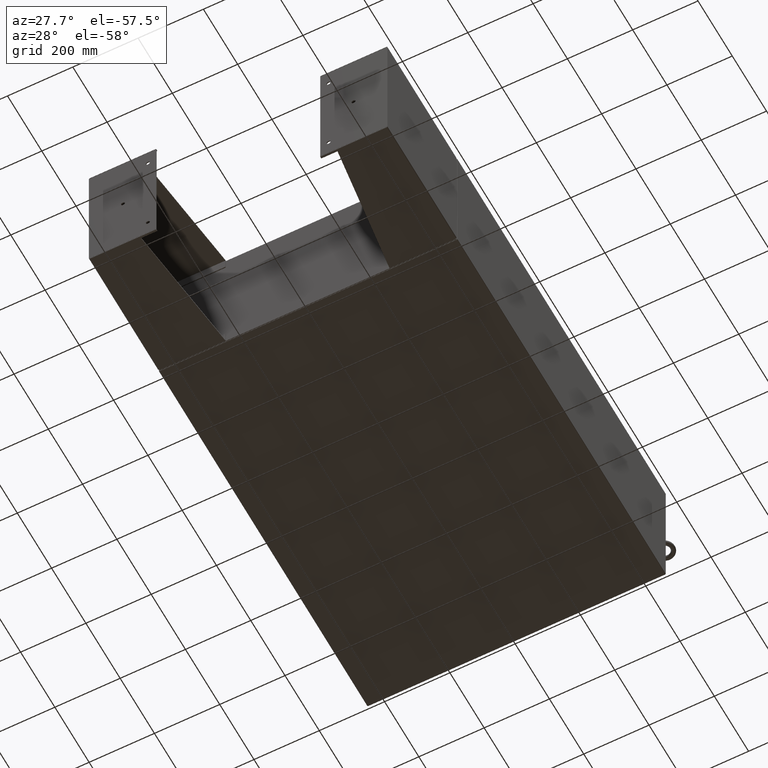
[diagram: clean part render]
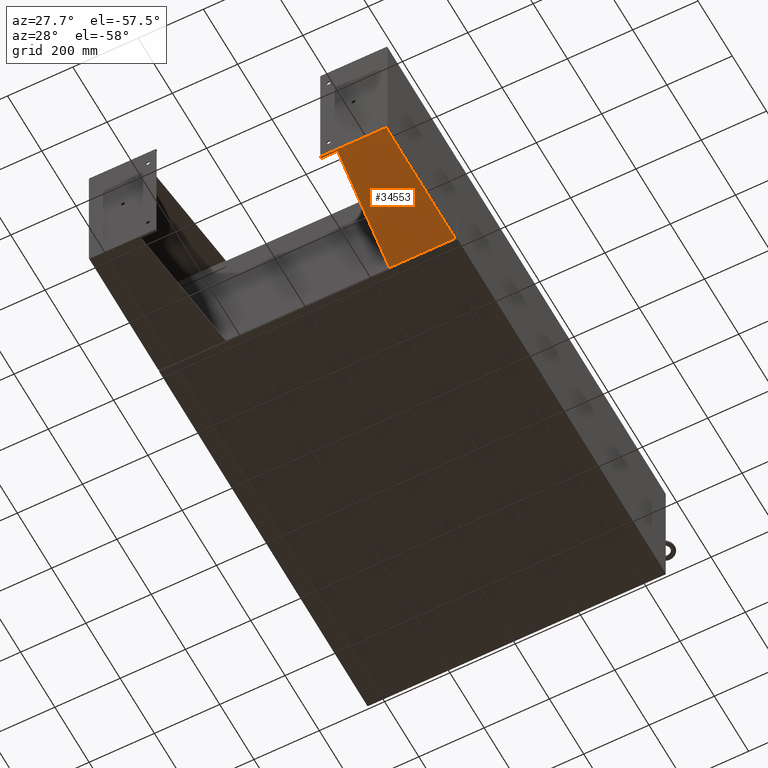
[diagram: same view with one face highlighted and labeled with its STEP entity id]
A machine part, auxiliary view. The second image highlights one B-rep face of the part: STEP entity #34553.
In plain terms, the highlighted planar face has unit normal (-0, 0, 1).
Its self-contained STEP definition (entity closure, byte-faithful):
#1995 = LINE ( 'NONE', #32430, #50338 ) ;
#2773 = VECTOR ( 'NONE', #52233, 39.37007874015748100 ) ;
#2926 = DIRECTION ( 'NONE',  ( 0.0000000000000000000, 0.0000000000000000000, -1.000000000000000000 ) ) ;
#4295 = VECTOR ( 'NONE', #4375, 39.37007874015748100 ) ;
#4375 = DIRECTION ( 'NONE',  ( -4.399772607369800400E-016, 0.9922942345449394800, 0.1239038017531047900 ) ) ;
#5338 = VERTEX_POINT ( 'NONE', #30991 ) ;
#5734 = CARTESIAN_POINT ( 'NONE',  ( -8.000000000000026600, 8.000000000000001800, 8.000999999999997700 ) ) ;
#5815 = EDGE_LOOP ( 'NONE', ( #18894, #35206, #10908, #16287, #25152, #47847 ) ) ;
#9837 = DIRECTION ( 'NONE',  ( 3.550958521948298200E-015, 0.0000000000000000000, -1.000000000000000000 ) ) ;
#10683 = VERTEX_POINT ( 'NONE', #13206 ) ;
#10908 = ORIENTED_EDGE ( 'NONE', *, *, #32558, .T. ) ;
#13166 = CARTESIAN_POINT ( 'NONE',  ( -8.000000000000019500, -7.749999999999999100, 6.052216497445926700 ) ) ;
#13206 = CARTESIAN_POINT ( 'NONE',  ( -8.000000000000019500, -7.750000000000000000, 6.052216497445926700 ) ) ;
#14947 = LINE ( 'NONE', #50383, #2773 ) ;
#15273 = VECTOR ( 'NONE', #36762, 39.37007874015748100 ) ;
#15725 = EDGE_CURVE ( 'NONE', #43756, #38823, #1995, .T. ) ;
#16287 = ORIENTED_EDGE ( 'NONE', *, *, #49145, .F. ) ;
#17274 = FACE_OUTER_BOUND ( 'NONE', #5815, .T. ) ;
#17494 = VERTEX_POINT ( 'NONE', #52718 ) ;
#17649 = DIRECTION ( 'NONE',  ( -3.550958521948298200E-015, 0.0000000000000000000, 1.000000000000000000 ) ) ;
#18894 = ORIENTED_EDGE ( 'NONE', *, *, #26671, .T. ) ;
#20696 = VECTOR ( 'NONE', #2926, 39.37007874015748100 ) ;
#22079 = PLANE ( 'NONE',  #26400 ) ;
#22983 = EDGE_CURVE ( 'NONE', #10683, #5338, #26165, .T. ) ;
#23143 = DIRECTION ( 'NONE',  ( 0.0000000000000000000, 1.000000000000000000, 0.0000000000000000000 ) ) ;
#24465 = LINE ( 'NONE', #38432, #42710 ) ;
#25152 = ORIENTED_EDGE ( 'NONE', *, *, #47545, .T. ) ;
#26165 = LINE ( 'NONE', #13166, #4295 ) ;
#26400 = AXIS2_PLACEMENT_3D ( 'NONE', #5734, #34552, #9837 ) ;
#26671 = EDGE_CURVE ( 'NONE', #38823, #10683, #14947, .T. ) ;
#30991 = CARTESIAN_POINT ( 'NONE',  ( -8.000000000000026600, 7.857000000000001100, 8.000999999999997700 ) ) ;
#32430 = CARTESIAN_POINT ( 'NONE',  ( -8.000000000000026600, 8.000000000000001800, 8.000999999999997700 ) ) ;
#32558 = EDGE_CURVE ( 'NONE', #5338, #17494, #42846, .T. ) ;
#34552 = DIRECTION ( 'NONE',  ( 1.000000000000000000, 0.0000000000000000000, 3.550958521948298200E-015 ) ) ;
#34553 = ADVANCED_FACE ( 'NONE', ( #17274 ), #22079, .F. ) ;
#34848 = VERTEX_POINT ( 'NONE', #48979 ) ;
#35206 = ORIENTED_EDGE ( 'NONE', *, *, #22983, .T. ) ;
#35492 = CARTESIAN_POINT ( 'NONE',  ( -8.000000000000026600, -7.750000000000000000, 8.001000000000006600 ) ) ;
#36762 = DIRECTION ( 'NONE',  ( 0.0000000000000000000, 1.000000000000000000, 0.0000000000000000000 ) ) ;
#38432 = CARTESIAN_POINT ( 'NONE',  ( -8.000000000000026600, -7.999999999999999100, 8.000999999999997700 ) ) ;
#38823 = VERTEX_POINT ( 'NONE', #35492 ) ;
#40805 = CARTESIAN_POINT ( 'NONE',  ( -7.999999999999999100, 8.000000000000001800, 0.03899999999999923000 ) ) ;
#42710 = VECTOR ( 'NONE', #17649, 39.37007874015748100 ) ;
#42846 = LINE ( 'NONE', #52333, #20696 ) ;
#43756 = VERTEX_POINT ( 'NONE', #53392 ) ;
#47545 = EDGE_CURVE ( 'NONE', #34848, #43756, #24465, .T. ) ;
#47847 = ORIENTED_EDGE ( 'NONE', *, *, #15725, .T. ) ;
#48243 = LINE ( 'NONE', #40805, #15273 ) ;
#48979 = CARTESIAN_POINT ( 'NONE',  ( -7.999999999999999100, -7.999999999999999100, 0.03899999999999813300 ) ) ;
#49145 = EDGE_CURVE ( 'NONE', #34848, #17494, #48243, .T. ) ;
#50338 = VECTOR ( 'NONE', #23143, 39.37007874015748100 ) ;
#50383 = CARTESIAN_POINT ( 'NONE',  ( -8.000000000000026600, -7.750000000000000000, 8.000999999999997700 ) ) ;
#52233 = DIRECTION ( 'NONE',  ( 3.550958521948298200E-015, 0.0000000000000000000, -1.000000000000000000 ) ) ;
#52333 = CARTESIAN_POINT ( 'NONE',  ( -8.000000000000012400, 7.857000000000001100, 8.000999999999997700 ) ) ;
#52718 = CARTESIAN_POINT ( 'NONE',  ( -8.000000000000012400, 7.857000000000001100, 0.03900000000000469100 ) ) ;
#53392 = CARTESIAN_POINT ( 'NONE',  ( -8.000000000000026600, -7.999999999999999100, 8.000999999999997700 ) ) ;